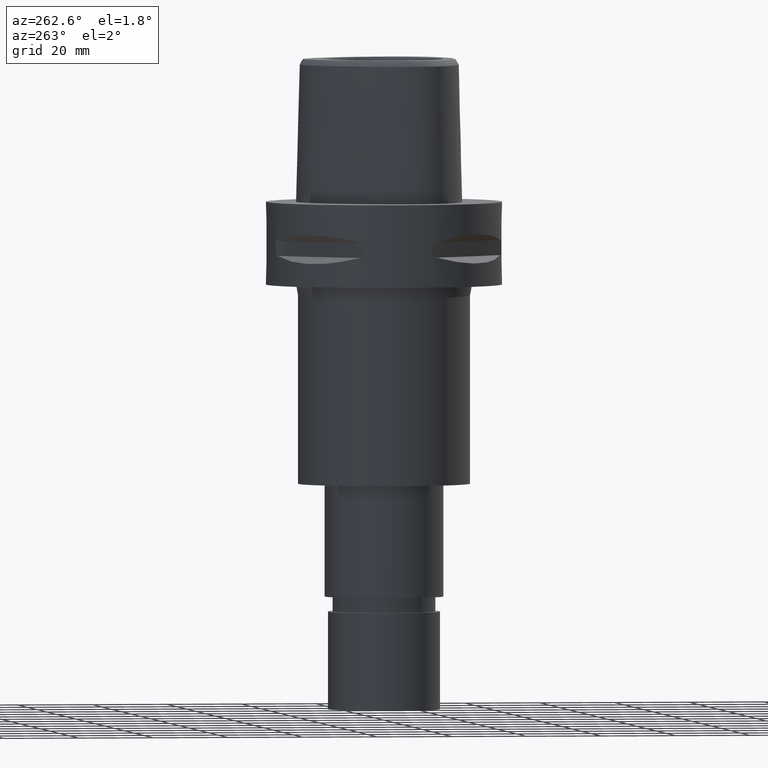
[diagram: clean part render]
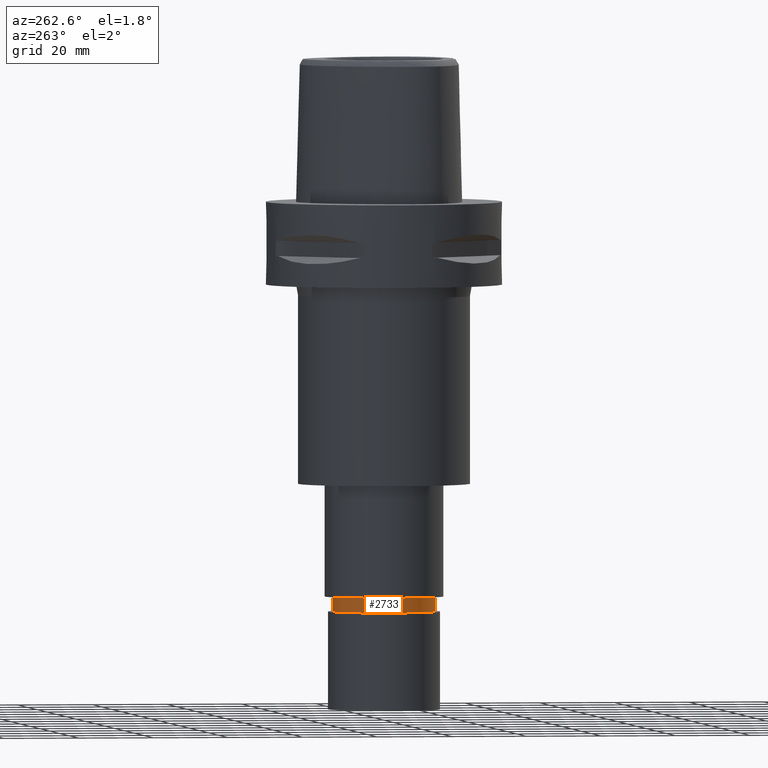
[diagram: same view with one face highlighted and labeled with its STEP entity id]
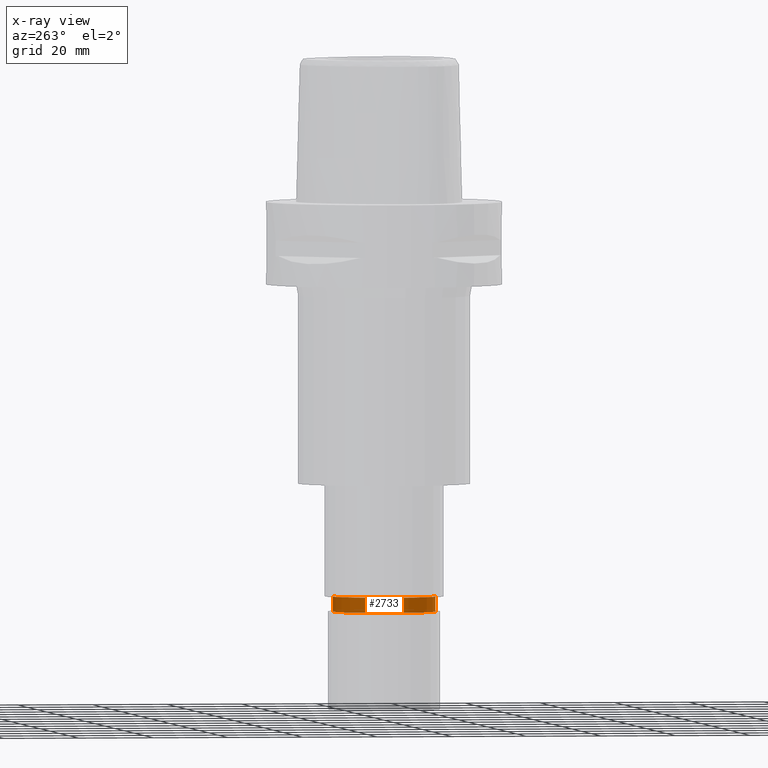
[diagram: x-ray of the same camera — body ghosted, the highlighted face saturated]
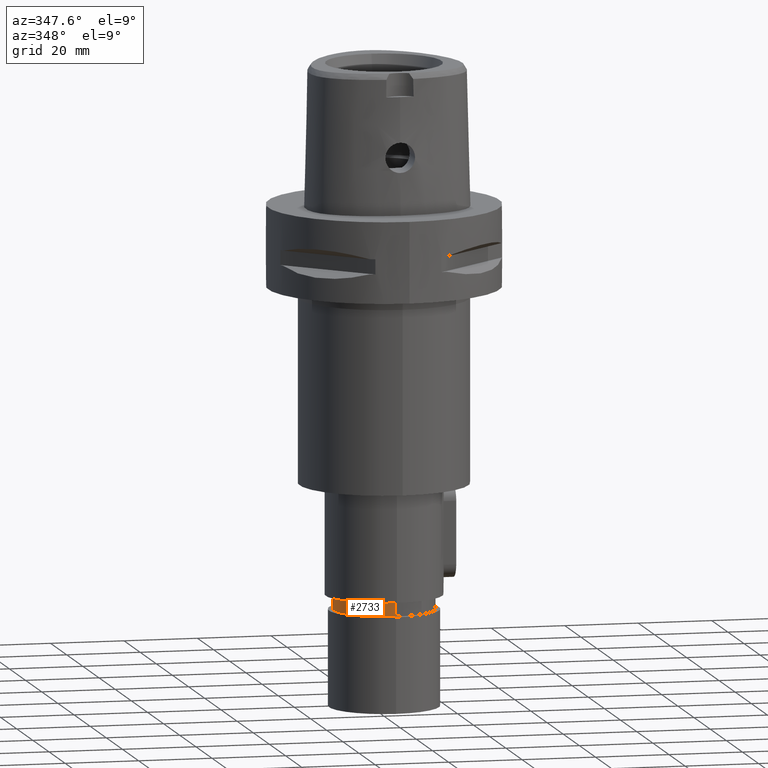
[diagram: same view with one face highlighted and labeled with its STEP entity id]
A machine part, auxiliary view. The second image highlights one B-rep face of the part: STEP entity #2733.
The next image is the same camera in x-ray: the body ghosted, the highlighted face saturated — about 0% of this face is hidden behind the body in this view.
A second angle (auxiliary view) of the same face is appended — the face is thin or edge-on in the first view.
In plain terms, the highlighted cylindrical surface (partial cylindrical patch) has radius 13.75 mm, axis along (0, 0, -1).
Its self-contained STEP definition (entity closure, byte-faithful):
#652=CARTESIAN_POINT('',(0.E0,1.307310458090E-14,-1.05E2));
#653=DIRECTION('',(0.E0,0.E0,-1.E0));
#654=DIRECTION('',(0.E0,-1.E0,0.E0));
#655=AXIS2_PLACEMENT_3D('',#652,#653,#654);
#660=DIRECTION('',(0.E0,0.E0,-1.E0));
#661=VECTOR('',#660,4.E0);
#662=CARTESIAN_POINT('',(0.E0,1.375E1,-1.05E2));
#663=LINE('',#662,#661);
#667=DIRECTION('',(0.E0,0.E0,-1.E0));
#668=VECTOR('',#667,4.E0);
#669=CARTESIAN_POINT('',(0.E0,-1.375E1,-1.05E2));
#670=LINE('',#669,#668);
#690=CARTESIAN_POINT('',(0.E0,1.307310458090E-14,-1.09E2));
#691=DIRECTION('',(0.E0,0.E0,1.E0));
#692=DIRECTION('',(0.E0,1.E0,0.E0));
#693=AXIS2_PLACEMENT_3D('',#690,#691,#692);
#1695=CARTESIAN_POINT('',(0.E0,1.375E1,-1.05E2));
#1696=CARTESIAN_POINT('',(0.E0,-1.375E1,-1.05E2));
#1697=VERTEX_POINT('',#1695);
#1698=VERTEX_POINT('',#1696);
#1699=CARTESIAN_POINT('',(0.E0,1.375E1,-1.09E2));
#1700=VERTEX_POINT('',#1699);
#1701=CARTESIAN_POINT('',(0.E0,-1.375E1,-1.09E2));
#1702=VERTEX_POINT('',#1701);
#2721=CARTESIAN_POINT('',(0.E0,1.307310458090E-14,6.75E0));
#2722=DIRECTION('',(0.E0,0.E0,-1.E0));
#2723=DIRECTION('',(0.E0,-1.E0,0.E0));
#2724=AXIS2_PLACEMENT_3D('',#2721,#2722,#2723);
#2725=CYLINDRICAL_SURFACE('',#2724,1.375E1);
#2726=ORIENTED_EDGE('',*,*,#2711,.F.);
#2727=ORIENTED_EDGE('',*,*,#2701,.F.);
#2728=ORIENTED_EDGE('',*,*,#2715,.T.);
#2730=ORIENTED_EDGE('',*,*,#2729,.F.);
#2731=EDGE_LOOP('',(#2726,#2727,#2728,#2730));
#2732=FACE_OUTER_BOUND('',#2731,.F.);
#656=CIRCLE('',#655,1.375E1);
#694=CIRCLE('',#693,1.375E1);
#2701=EDGE_CURVE('',#1698,#1697,#656,.T.);
#2711=EDGE_CURVE('',#1697,#1700,#663,.T.);
#2715=EDGE_CURVE('',#1698,#1702,#670,.T.);
#2729=EDGE_CURVE('',#1700,#1702,#694,.T.);
#2733=ADVANCED_FACE('',(#2732),#2725,.T.);